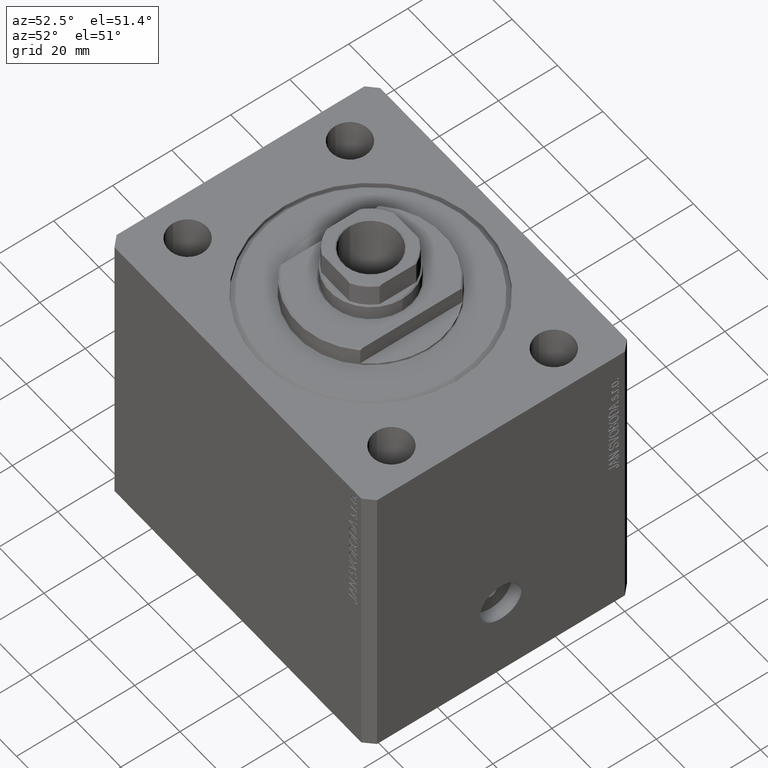
[diagram: clean part render]
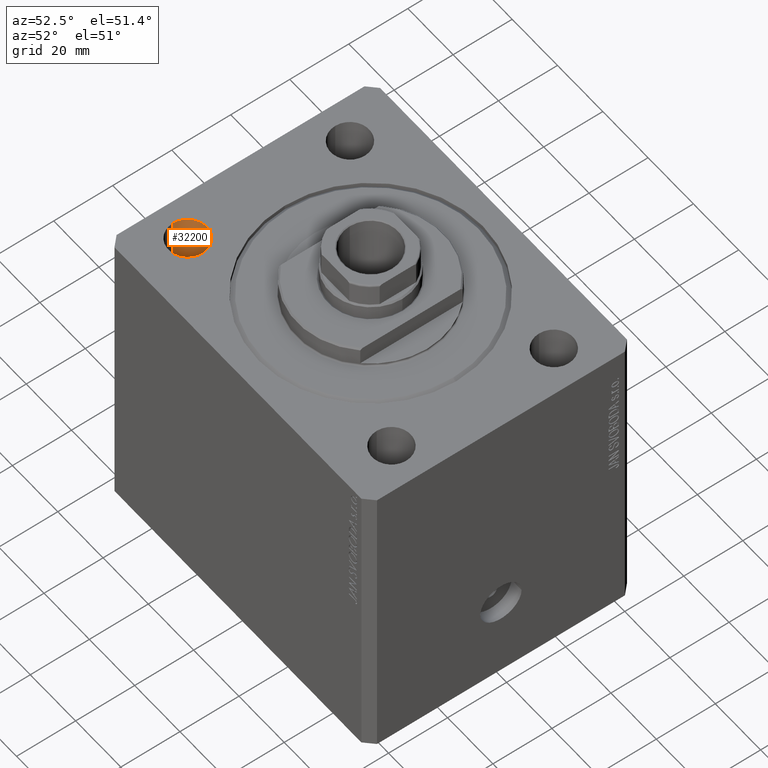
[diagram: same view with one face highlighted and labeled with its STEP entity id]
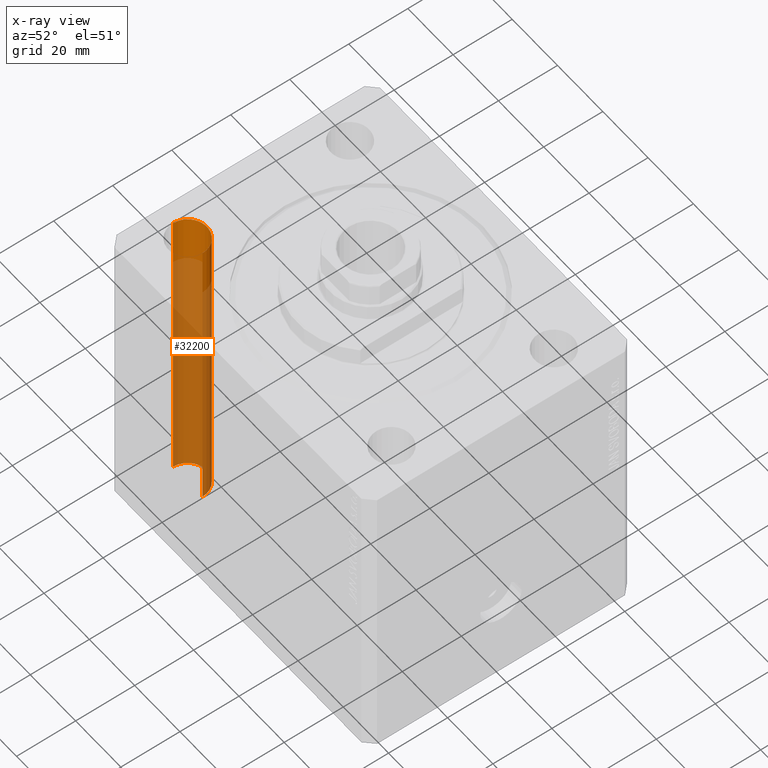
[diagram: x-ray of the same camera — body ghosted, the highlighted face saturated]
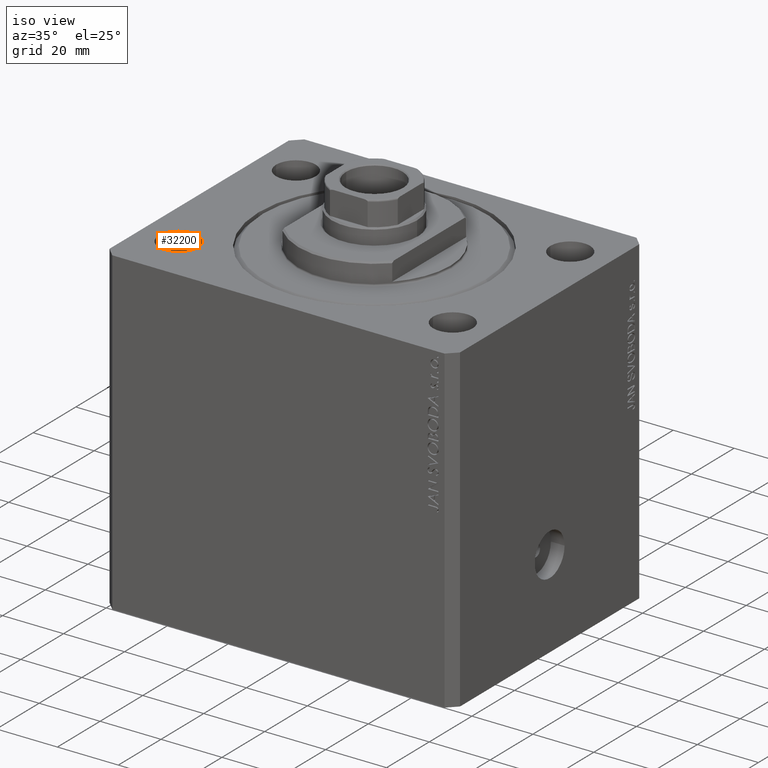
[diagram: same view with one face highlighted and labeled with its STEP entity id]
A machine part, auxiliary view. The second image highlights one B-rep face of the part: STEP entity #32200.
The next image is the same camera in x-ray: the body ghosted, the highlighted face saturated — about 82% of this face is hidden behind the body in this view.
A second angle (iso view) of the same face is appended — the face is thin or edge-on in the first view.
In plain terms, the highlighted cylindrical surface (edge-blend (fillet) strip) has radius 6.5 mm, axis along (0, 0, 1).
Its self-contained STEP definition (entity closure, byte-faithful):
#2607 = DIRECTION ( 'NONE',  ( 1.000000000000000000, 0.000000000000000000, 0.000000000000000000 ) ) ;
#4619 = CARTESIAN_POINT ( 'NONE',  ( -38.49999999999998579, -27.50000000000000355, -105.0000000000000000 ) ) ;
#5192 = DIRECTION ( 'NONE',  ( -0.000000000000000000, -0.000000000000000000, 1.000000000000000000 ) ) ;
#5293 = EDGE_CURVE ( 'NONE', #35854, #23975, #31999, .T. ) ;
#5446 = DIRECTION ( 'NONE',  ( 1.000000000000000000, 0.000000000000000000, 0.000000000000000000 ) ) ;
#6207 = VERTEX_POINT ( 'NONE', #4619 ) ;
#8104 = CARTESIAN_POINT ( 'NONE',  ( -38.49999999999998579, -27.50000000000000355, -123.3847763108502278 ) ) ;
#8563 = LINE ( 'NONE', #8104, #27771 ) ;
#9477 = CARTESIAN_POINT ( 'NONE',  ( -51.49999999999998579, -27.50000000000000355, -105.0000000000000000 ) ) ;
#12075 = DIRECTION ( 'NONE',  ( 1.000000000000000000, 0.000000000000000000, 0.000000000000000000 ) ) ;
#12289 = AXIS2_PLACEMENT_3D ( 'NONE', #38716, #31763, #5446 ) ;
#13951 = CIRCLE ( 'NONE', #43744, 6.499999999999999112 ) ;
#17885 = EDGE_CURVE ( 'NONE', #6207, #35854, #8563, .T. ) ;
#19775 = EDGE_CURVE ( 'NONE', #32522, #6207, #13951, .T. ) ;
#23975 = VERTEX_POINT ( 'NONE', #42124 ) ;
#25645 = ORIENTED_EDGE ( 'NONE', *, *, #5293, .T. ) ;
#26315 = LINE ( 'NONE', #27444, #38631 ) ;
#27097 = ORIENTED_EDGE ( 'NONE', *, *, #19775, .T. ) ;
#27232 = FACE_OUTER_BOUND ( 'NONE', #28328, .T. ) ;
#27236 = EDGE_CURVE ( 'NONE', #32522, #23975, #26315, .T. ) ;
#27444 = CARTESIAN_POINT ( 'NONE',  ( -51.49999999999998579, -27.50000000000000355, -123.3847763108502278 ) ) ;
#27771 = VECTOR ( 'NONE', #40895, 1000.000000000000000 ) ;
#28172 = AXIS2_PLACEMENT_3D ( 'NONE', #43760, #28441, #2607 ) ;
#28328 = EDGE_LOOP ( 'NONE', ( #29741, #27097, #47364, #25645 ) ) ;
#28441 = DIRECTION ( 'NONE',  ( 0.000000000000000000, 0.000000000000000000, 1.000000000000000000 ) ) ;
#29741 = ORIENTED_EDGE ( 'NONE', *, *, #27236, .F. ) ;
#31763 = DIRECTION ( 'NONE',  ( -0.000000000000000000, -0.000000000000000000, 1.000000000000000000 ) ) ;
#31999 = CIRCLE ( 'NONE', #28172, 6.499999999999999112 ) ;
#32200 = ADVANCED_FACE ( 'NONE', ( #27232 ), #38480, .F. ) ;
#32522 = VERTEX_POINT ( 'NONE', #9477 ) ;
#35854 = VERTEX_POINT ( 'NONE', #41658 ) ;
#38480 = CYLINDRICAL_SURFACE ( 'NONE', #12289, 6.499999999999999112 ) ;
#38631 = VECTOR ( 'NONE', #5192, 1000.000000000000000 ) ;
#38716 = CARTESIAN_POINT ( 'NONE',  ( -44.99999999999998579, -27.50000000000000355, -123.3847763108502278 ) ) ;
#40895 = DIRECTION ( 'NONE',  ( -0.000000000000000000, -0.000000000000000000, 1.000000000000000000 ) ) ;
#41658 = CARTESIAN_POINT ( 'NONE',  ( -38.49999999999998579, -27.50000000000000355, 0.000000000000000000 ) ) ;
#42124 = CARTESIAN_POINT ( 'NONE',  ( -51.49999999999998579, -27.50000000000000355, 0.000000000000000000 ) ) ;
#43744 = AXIS2_PLACEMENT_3D ( 'NONE', #44871, #45104, #12075 ) ;
#43760 = CARTESIAN_POINT ( 'NONE',  ( -44.99999999999998579, -27.50000000000000355, 0.000000000000000000 ) ) ;
#44871 = CARTESIAN_POINT ( 'NONE',  ( -44.99999999999998579, -27.50000000000000355, -105.0000000000000000 ) ) ;
#45104 = DIRECTION ( 'NONE',  ( -0.000000000000000000, -0.000000000000000000, -1.000000000000000000 ) ) ;
#47364 = ORIENTED_EDGE ( 'NONE', *, *, #17885, .T. ) ;